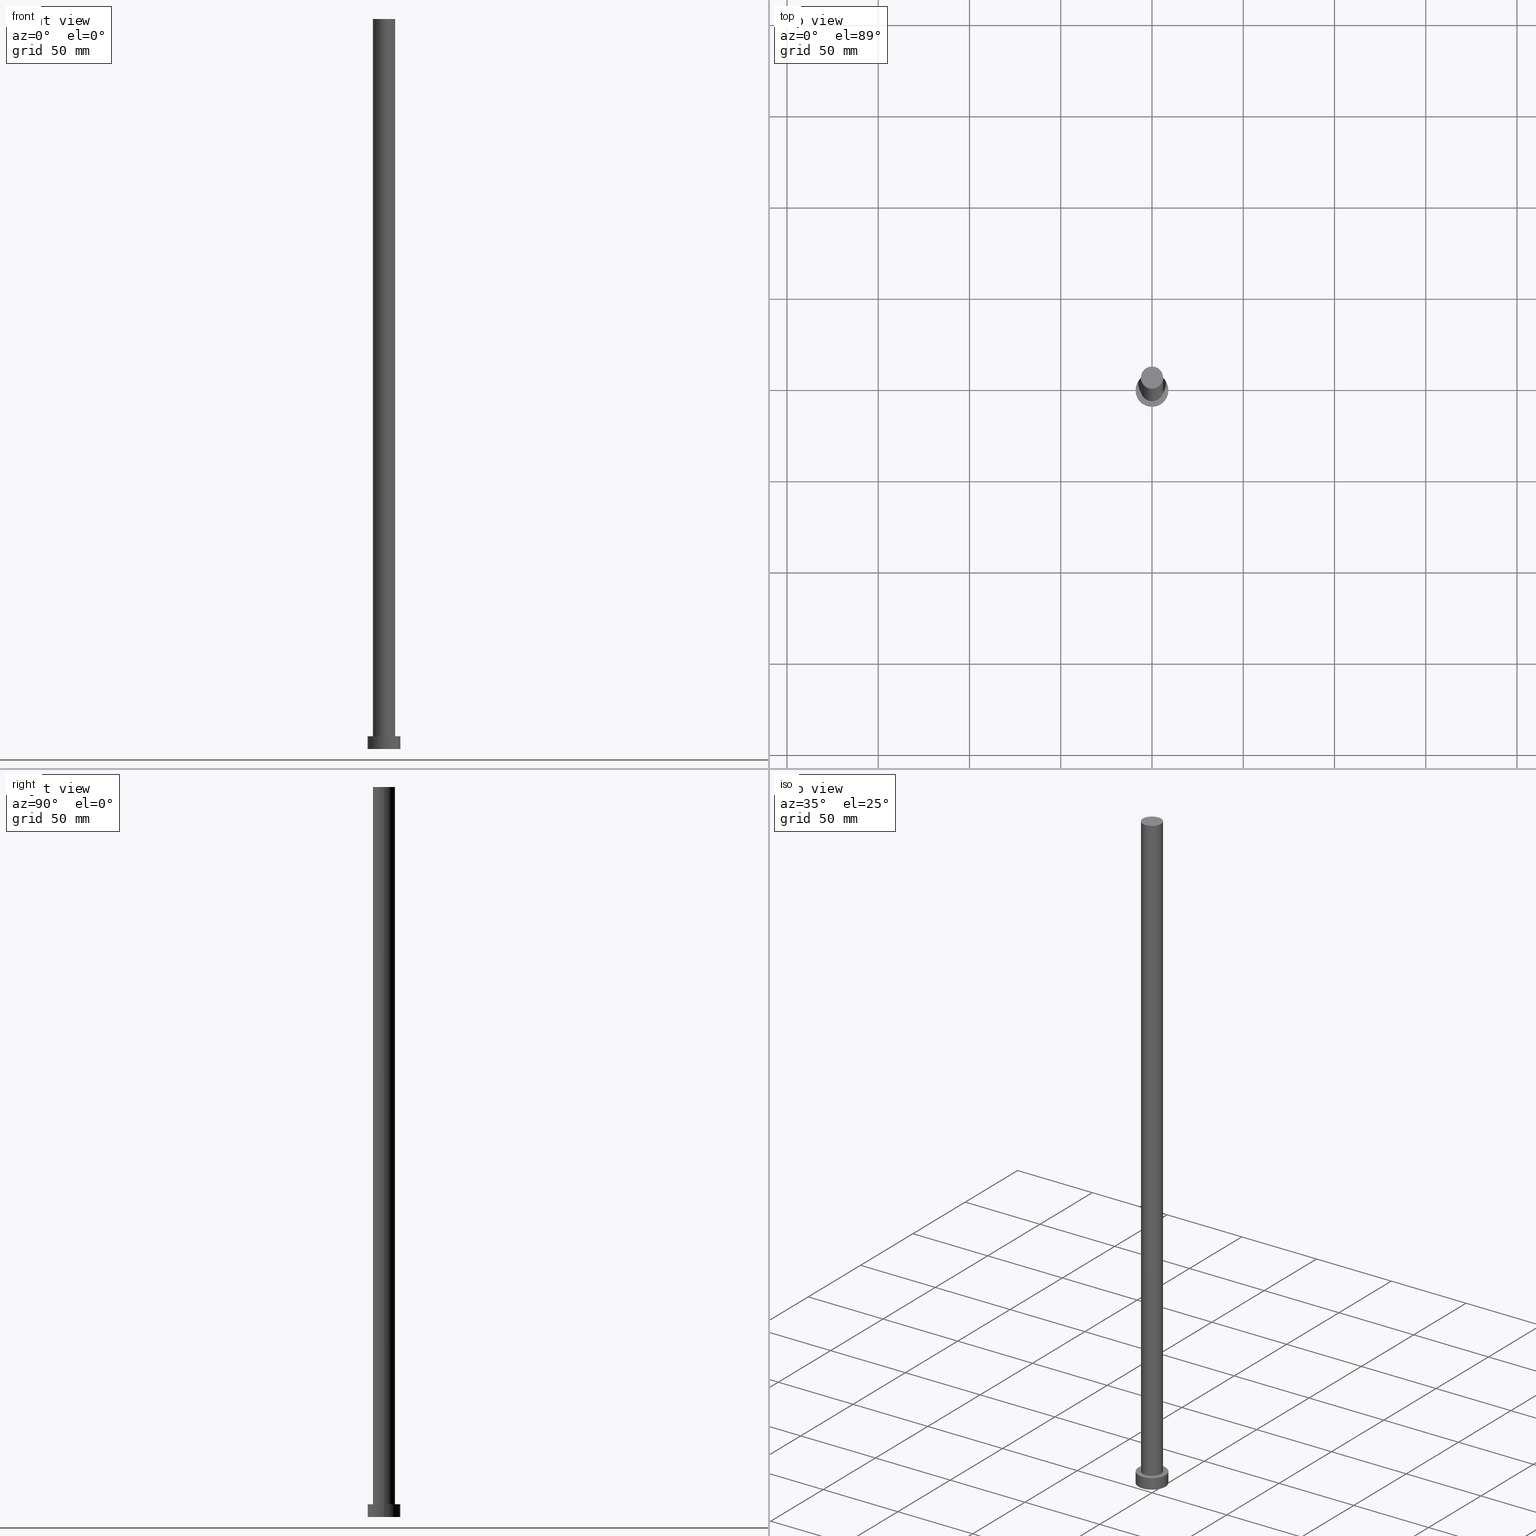
[diagram: canonical four-view strip — front | top / right | iso, engineering-drawing reading convention]
A machine part, canonical four-view strip (front | top / right | iso — engineering-drawing reading convention). The complete STEP part file that produces these views, byte-faithful:
ISO-10303-21;
HEADER;
FILE_DESCRIPTION (( 'STEP AP203' ),
    '1' );
FILE_NAME ('2dad.STEP',
    '2023-02-13T11:28:44',
    ( '' ),
    ( '' ),
    'SwSTEP 2.0',
    'SolidWorks 2019',
    '' );
FILE_SCHEMA (( 'CONFIG_CONTROL_DESIGN' ));
ENDSEC;

DATA;
#1 = EDGE_CURVE ( 'NONE', #119, #86, #211, .T. ) ;
#2 = APPROVAL_DATE_TIME ( #158, #5 ) ;
#3 = AXIS2_PLACEMENT_3D ( 'NONE', #128, #230, #94 ) ;
#4 = ORIENTED_EDGE ( 'NONE', *, *, #54, .T. ) ;
#5 = APPROVAL ( #237, 'NEUR�EN�' ) ;
#6 = LINE ( 'NONE', #187, #92 ) ;
#7 = APPROVAL_PERSON_ORGANIZATION ( #255, #190, #179 ) ;
#8 = ORIENTED_EDGE ( 'NONE', *, *, #181, .T. ) ;
#9 = UNCERTAINTY_MEASURE_WITH_UNIT (LENGTH_MEASURE( 1.000000000000000082E-05 ), #154, 'distance_accuracy_value', 'NONE');
#10 = CARTESIAN_POINT ( 'NONE',  ( 0.000000000000000000, 0.000000000000000000, 0.000000000000000000 ) ) ;
#11 = DIRECTION ( 'NONE',  ( 0.000000000000000000, 0.000000000000000000, 1.000000000000000000 ) ) ;
#12 = CARTESIAN_POINT ( 'NONE',  ( -9.000000000000000000, 0.000000000000000000, 7.000000000000000000 ) ) ;
#13 = DIRECTION ( 'NONE',  ( 0.000000000000000000, 0.000000000000000000, 1.000000000000000000 ) ) ;
#14 = EDGE_CURVE ( 'NONE', #228, #199, #6, .T. ) ;
#15 = DIRECTION ( 'NONE',  ( -1.000000000000000000, 0.000000000000000000, 0.000000000000000000 ) ) ;
#16 = CIRCLE ( 'NONE', #189, 9.000000000000000000 ) ;
#17 = DIRECTION ( 'NONE',  ( 1.000000000000000000, 0.000000000000000000, 0.000000000000000000 ) ) ;
#18 = CYLINDRICAL_SURFACE ( 'NONE', #234, 6.099999999999999645 ) ;
#19 = DATE_AND_TIME ( #138, #207 ) ;
#20 = CC_DESIGN_PERSON_AND_ORGANIZATION_ASSIGNMENT ( #78, #139, ( #202 ) ) ;
#21 = MECHANICAL_CONTEXT ( 'NONE', #224, 'mechanical' ) ;
#22 = AXIS2_PLACEMENT_3D ( 'NONE', #103, #29, #186 ) ;
#23 = ORIENTED_EDGE ( 'NONE', *, *, #14, .T. ) ;
#24 = ORIENTED_EDGE ( 'NONE', *, *, #238, .F. ) ;
#25 = AXIS2_PLACEMENT_3D ( 'NONE', #91, #169, #174 ) ;
#26 = EDGE_LOOP ( 'NONE', ( #125, #84 ) ) ;
#27 = ADVANCED_FACE ( 'NONE', ( #66 ), #45, .T. ) ;
#28 = CARTESIAN_POINT ( 'NONE',  ( 0.000000000000000000, 0.000000000000000000, 7.000000000000000000 ) ) ;
#29 = DIRECTION ( 'NONE',  ( 0.000000000000000000, 0.000000000000000000, 1.000000000000000000 ) ) ;
#30 = CARTESIAN_POINT ( 'NONE',  ( -6.099999999999999645, 0.000000000000000000, 400.0000000000000000 ) ) ;
#31 = DIRECTION ( 'NONE',  ( 0.000000000000000000, 0.000000000000000000, 1.000000000000000000 ) ) ;
#32 = VECTOR ( 'NONE', #111, 1000.000000000000000 ) ;
#33 = EDGE_CURVE ( 'NONE', #199, #205, #76, .T. ) ;
#34 = DIRECTION ( 'NONE',  ( 1.000000000000000000, 0.000000000000000000, 0.000000000000000000 ) ) ;
#35 = DIRECTION ( 'NONE',  ( 0.000000000000000000, 0.000000000000000000, 1.000000000000000000 ) ) ;
#36 = ORIENTED_EDGE ( 'NONE', *, *, #134, .F. ) ;
#37 = PERSON_AND_ORGANIZATION_ROLE ( 'classification_officer' ) ;
#38 = SECURITY_CLASSIFICATION ( '', '', #198 ) ;
#39 = COORDINATED_UNIVERSAL_TIME_OFFSET ( 1, 0, .AHEAD. ) ;
#40 = APPLICATION_CONTEXT ( 'configuration controlled 3d designs of mechanical parts and assemblies' ) ;
#41 = EDGE_LOOP ( 'NONE', ( #57, #8, #67, #164 ) ) ;
#42 = AXIS2_PLACEMENT_3D ( 'NONE', #250, #31, #34 ) ;
#43 = ORIENTED_EDGE ( 'NONE', *, *, #185, .T. ) ;
#44 = EDGE_LOOP ( 'NONE', ( #184, #200 ) ) ;
#45 = CYLINDRICAL_SURFACE ( 'NONE', #87, 6.099999999999999645 ) ;
#46 = CIRCLE ( 'NONE', #42, 6.099999999999999645 ) ;
#47 = CARTESIAN_POINT ( 'NONE',  ( 6.099999999999999645, 7.470345474798854293E-16, 7.000000000000000000 ) ) ;
#48 = PRODUCT_DEFINITION_SHAPE ( 'NONE', 'NONE',  #202 ) ;
#49 = CARTESIAN_POINT ( 'NONE',  ( -9.000000000000000000, 0.000000000000000000, 7.000000000000000000 ) ) ;
#50 = CARTESIAN_POINT ( 'NONE',  ( 9.000000000000000000, 1.102182119232617714E-15, 7.000000000000000000 ) ) ;
#51 = ADVANCED_FACE ( 'NONE', ( #123 ), #203, .T. ) ;
#52 = FACE_OUTER_BOUND ( 'NONE', #41, .T. ) ;
#53 = CARTESIAN_POINT ( 'NONE',  ( 6.099999999999999645, 7.470345474798854293E-16, 400.0000000000000000 ) ) ;
#54 = EDGE_CURVE ( 'NONE', #205, #199, #246, .T. ) ;
#55 =( NAMED_UNIT ( * ) SI_UNIT ( $, .STERADIAN. ) SOLID_ANGLE_UNIT ( ) );
#56 = AXIS2_PLACEMENT_3D ( 'NONE', #10, #85, #127 ) ;
#57 = ORIENTED_EDGE ( 'NONE', *, *, #214, .F. ) ;
#58 = DATE_AND_TIME ( #95, #151 ) ;
#59 = AXIS2_PLACEMENT_3D ( 'NONE', #108, #191, #129 ) ;
#60 = DIRECTION ( 'NONE',  ( 1.000000000000000000, 0.000000000000000000, 0.000000000000000000 ) ) ;
#61 = CC_DESIGN_PERSON_AND_ORGANIZATION_ASSIGNMENT ( #112, #215, ( #254 ) ) ;
#62 = CARTESIAN_POINT ( 'NONE',  ( 0.000000000000000000, 0.000000000000000000, 400.0000000000000000 ) ) ;
#63 = LOCAL_TIME ( 12, 28, 44.00000000000000000, #39 ) ;
#64 = EDGE_LOOP ( 'NONE', ( #121, #24 ) ) ;
#65 = EDGE_LOOP ( 'NONE', ( #201, #122 ) ) ;
#66 = FACE_OUTER_BOUND ( 'NONE', #101, .T. ) ;
#67 = ORIENTED_EDGE ( 'NONE', *, *, #238, .T. ) ;
#68 = DIRECTION ( 'NONE',  ( 0.000000000000000000, 0.000000000000000000, 1.000000000000000000 ) ) ;
#69 = CC_DESIGN_DATE_AND_TIME_ASSIGNMENT ( #196, #161, ( #202 ) ) ;
#70 = LINE ( 'NONE', #30, #32 ) ;
#71 = PRODUCT ( '2dad', '2dad', '', ( #21 ) ) ;
#72 = CARTESIAN_POINT ( 'NONE',  ( 0.000000000000000000, 0.000000000000000000, 400.0000000000000000 ) ) ;
#73 = DIRECTION ( 'NONE',  ( 1.000000000000000000, 0.000000000000000000, 0.000000000000000000 ) ) ;
#74 = DIRECTION ( 'NONE',  ( -1.000000000000000000, 0.000000000000000000, 0.000000000000000000 ) ) ;
#75 = PERSON_AND_ORGANIZATION ( #155, #156 ) ;
#76 = CIRCLE ( 'NONE', #124, 9.000000000000000000 ) ;
#77 = PERSON_AND_ORGANIZATION ( #155, #156 ) ;
#78 = PERSON_AND_ORGANIZATION ( #155, #156 ) ;
#79 = COORDINATED_UNIVERSAL_TIME_OFFSET ( 1, 0, .AHEAD. ) ;
#80 = LOCAL_TIME ( 12, 28, 44.00000000000000000, #239 ) ;
#81 = APPROVAL_ROLE ( '' ) ;
#82 = DIRECTION ( 'NONE',  ( -0.000000000000000000, -0.000000000000000000, -1.000000000000000000 ) ) ;
#83 = CIRCLE ( 'NONE', #120, 6.099999999999999645 ) ;
#84 = ORIENTED_EDGE ( 'NONE', *, *, #162, .T. ) ;
#85 = DIRECTION ( 'NONE',  ( 0.000000000000000000, 0.000000000000000000, 1.000000000000000000 ) ) ;
#86 = VERTEX_POINT ( 'NONE', #47 ) ;
#87 = AXIS2_PLACEMENT_3D ( 'NONE', #62, #82, #243 ) ;
#88 = CC_DESIGN_PERSON_AND_ORGANIZATION_ASSIGNMENT ( #75, #37, ( #38 ) ) ;
#89 = DIRECTION ( 'NONE',  ( -0.000000000000000000, -0.000000000000000000, -1.000000000000000000 ) ) ;
#90 = LINE ( 'NONE', #251, #253 ) ;
#91 = CARTESIAN_POINT ( 'NONE',  ( 0.000000000000000000, 0.000000000000000000, 0.000000000000000000 ) ) ;
#92 = VECTOR ( 'NONE', #145, 1000.000000000000000 ) ;
#93 = FACE_OUTER_BOUND ( 'NONE', #65, .T. ) ;
#94 = DIRECTION ( 'NONE',  ( 1.000000000000000000, 0.000000000000000000, 0.000000000000000000 ) ) ;
#95 = CALENDAR_DATE ( 2023, 13, 2 ) ;
#96 = AXIS2_PLACEMENT_3D ( 'NONE', #192, #35, #60 ) ;
#97 = APPROVAL_STATUS ( 'not_yet_approved' ) ;
#98 = EDGE_LOOP ( 'NONE', ( #204, #247, #226, #4 ) ) ;
#99 = DATE_TIME_ROLE ( 'classification_date' ) ;
#100 = COORDINATED_UNIVERSAL_TIME_OFFSET ( 1, 0, .AHEAD. ) ;
#101 = EDGE_LOOP ( 'NONE', ( #102, #163, #43, #223 ) ) ;
#102 = ORIENTED_EDGE ( 'NONE', *, *, #181, .F. ) ;
#103 = CARTESIAN_POINT ( 'NONE',  ( 0.000000000000000000, 0.000000000000000000, 400.0000000000000000 ) ) ;
#104 = DIRECTION ( 'NONE',  ( 1.000000000000000000, 0.000000000000000000, 0.000000000000000000 ) ) ;
#105 = ADVANCED_FACE ( 'NONE', ( #166, #241 ), #245, .T. ) ;
#106 = CARTESIAN_POINT ( 'NONE',  ( -6.099999999999999645, 0.000000000000000000, 7.000000000000000000 ) ) ;
#107 =( GEOMETRIC_REPRESENTATION_CONTEXT ( 3 ) GLOBAL_UNCERTAINTY_ASSIGNED_CONTEXT ( ( #9 ) ) GLOBAL_UNIT_ASSIGNED_CONTEXT ( ( #154, #206, #55 ) ) REPRESENTATION_CONTEXT ( 'NONE', 'WORKASPACE' ) );
#108 = CARTESIAN_POINT ( 'NONE',  ( 0.000000000000000000, 0.000000000000000000, 7.000000000000000000 ) ) ;
#109 = CYLINDRICAL_SURFACE ( 'NONE', #59, 9.000000000000000000 ) ;
#110 = APPLICATION_PROTOCOL_DEFINITION ( 'international standard', 'config_control_design', 1994, #224 ) ;
#111 = DIRECTION ( 'NONE',  ( -0.000000000000000000, -0.000000000000000000, -1.000000000000000000 ) ) ;
#112 = PERSON_AND_ORGANIZATION ( #155, #156 ) ;
#113 = VERTEX_POINT ( 'NONE', #49 ) ;
#114 = APPROVAL_PERSON_ORGANIZATION ( #160, #5, #197 ) ;
#115 = PERSON_AND_ORGANIZATION ( #155, #156 ) ;
#116 = CALENDAR_DATE ( 2023, 13, 2 ) ;
#117 = CC_DESIGN_DATE_AND_TIME_ASSIGNMENT ( #19, #99, ( #38 ) ) ;
#118 = ADVANCED_BREP_SHAPE_REPRESENTATION ( '2dad', ( #213, #96 ), #107 ) ;
#119 = VERTEX_POINT ( 'NONE', #106 ) ;
#120 = AXIS2_PLACEMENT_3D ( 'NONE', #209, #68, #149 ) ;
#121 = ORIENTED_EDGE ( 'NONE', *, *, #1, .F. ) ;
#122 = ORIENTED_EDGE ( 'NONE', *, *, #33, .F. ) ;
#123 = FACE_OUTER_BOUND ( 'NONE', #44, .T. ) ;
#124 = AXIS2_PLACEMENT_3D ( 'NONE', #142, #148, #146 ) ;
#125 = ORIENTED_EDGE ( 'NONE', *, *, #219, .T. ) ;
#126 = PRODUCT_RELATED_PRODUCT_CATEGORY ( 'detail', '', ( #71 ) ) ;
#127 = DIRECTION ( 'NONE',  ( 1.000000000000000000, 0.000000000000000000, 0.000000000000000000 ) ) ;
#128 = CARTESIAN_POINT ( 'NONE',  ( 0.000000000000000000, 0.000000000000000000, 7.000000000000000000 ) ) ;
#129 = DIRECTION ( 'NONE',  ( -1.000000000000000000, 0.000000000000000000, 0.000000000000000000 ) ) ;
#130 = DIRECTION ( 'NONE',  ( -0.000000000000000000, -0.000000000000000000, -1.000000000000000000 ) ) ;
#131 = PLANE ( 'NONE',  #25 ) ;
#132 = VECTOR ( 'NONE', #89, 1000.000000000000000 ) ;
#133 = DIRECTION ( 'NONE',  ( -0.000000000000000000, -0.000000000000000000, -1.000000000000000000 ) ) ;
#134 = EDGE_CURVE ( 'NONE', #113, #205, #188, .T. ) ;
#135 = SHAPE_DEFINITION_REPRESENTATION ( #48, #118 ) ;
#136 = PERSON_AND_ORGANIZATION_ROLE ( 'creator' ) ;
#137 = CC_DESIGN_PERSON_AND_ORGANIZATION_ASSIGNMENT ( #77, #180, ( #71 ) ) ;
#138 = CALENDAR_DATE ( 2023, 13, 2 ) ;
#139 = PERSON_AND_ORGANIZATION_ROLE ( 'creator' ) ;
#140 = ORIENTED_EDGE ( 'NONE', *, *, #33, .T. ) ;
#141 = CIRCLE ( 'NONE', #3, 9.000000000000000000 ) ;
#142 = CARTESIAN_POINT ( 'NONE',  ( 0.000000000000000000, 0.000000000000000000, 0.000000000000000000 ) ) ;
#143 = CLOSED_SHELL ( 'NONE', ( #229, #153, #171, #105, #165, #27, #51 ) ) ;
#144 = VERTEX_POINT ( 'NONE', #222 ) ;
#145 = DIRECTION ( 'NONE',  ( -0.000000000000000000, -0.000000000000000000, -1.000000000000000000 ) ) ;
#146 = DIRECTION ( 'NONE',  ( 1.000000000000000000, 0.000000000000000000, 0.000000000000000000 ) ) ;
#147 = AXIS2_PLACEMENT_3D ( 'NONE', #28, #11, #167 ) ;
#148 = DIRECTION ( 'NONE',  ( 0.000000000000000000, 0.000000000000000000, 1.000000000000000000 ) ) ;
#149 = DIRECTION ( 'NONE',  ( 1.000000000000000000, 0.000000000000000000, 0.000000000000000000 ) ) ;
#150 = DIRECTION ( 'NONE',  ( 0.000000000000000000, 0.000000000000000000, 1.000000000000000000 ) ) ;
#151 = LOCAL_TIME ( 12, 28, 44.00000000000000000, #79 ) ;
#152 = CC_DESIGN_PERSON_AND_ORGANIZATION_ASSIGNMENT ( #157, #136, ( #254 ) ) ;
#153 = ADVANCED_FACE ( 'NONE', ( #170 ), #109, .T. ) ;
#154 =( LENGTH_UNIT ( ) NAMED_UNIT ( * ) SI_UNIT ( .MILLI., .METRE. ) );
#155 = PERSON ( 'NEUR�EN�', 'NEUR�EN�', 'NEUR�EN�', ('NEUR�EN�'), ('NEUR�EN�'), ('NEUR�EN�') ) ;
#156 = ORGANIZATION ( 'NEUR�EN�', 'NEUR�EN�', '' ) ;
#157 = PERSON_AND_ORGANIZATION ( #155, #156 ) ;
#158 = DATE_AND_TIME ( #176, #195 ) ;
#159 = CC_DESIGN_APPROVAL ( #190, ( #254 ) ) ;
#160 = PERSON_AND_ORGANIZATION ( #155, #156 ) ;
#161 = DATE_TIME_ROLE ( 'creation_date' ) ;
#162 = EDGE_CURVE ( 'NONE', #228, #113, #16, .T. ) ;
#163 = ORIENTED_EDGE ( 'NONE', *, *, #210, .F. ) ;
#164 = ORIENTED_EDGE ( 'NONE', *, *, #185, .F. ) ;
#165 = ADVANCED_FACE ( 'NONE', ( #93 ), #131, .F. ) ;
#166 = FACE_BOUND ( 'NONE', #64, .T. ) ;
#167 = DIRECTION ( 'NONE',  ( 1.000000000000000000, 0.000000000000000000, -0.000000000000000000 ) ) ;
#168 = CIRCLE ( 'NONE', #231, 6.099999999999999645 ) ;
#169 = DIRECTION ( 'NONE',  ( 0.000000000000000000, 0.000000000000000000, 1.000000000000000000 ) ) ;
#170 = FACE_OUTER_BOUND ( 'NONE', #240, .T. ) ;
#171 = ADVANCED_FACE ( 'NONE', ( #248 ), #249, .T. ) ;
#172 = CARTESIAN_POINT ( 'NONE',  ( 9.000000000000000000, 1.102182119232617714E-15, 0.000000000000000000 ) ) ;
#173 = AXIS2_PLACEMENT_3D ( 'NONE', #182, #244, #104 ) ;
#174 = DIRECTION ( 'NONE',  ( 1.000000000000000000, 0.000000000000000000, -0.000000000000000000 ) ) ;
#175 = CARTESIAN_POINT ( 'NONE',  ( 0.000000000000000000, 0.000000000000000000, 7.000000000000000000 ) ) ;
#176 = CALENDAR_DATE ( 2023, 13, 2 ) ;
#177 = CC_DESIGN_APPROVAL ( #5, ( #202 ) ) ;
#178 = APPROVAL_DATE_TIME ( #218, #225 ) ;
#179 = APPROVAL_ROLE ( '' ) ;
#180 = PERSON_AND_ORGANIZATION_ROLE ( 'design_owner' ) ;
#181 = EDGE_CURVE ( 'NONE', #220, #86, #90, .T. ) ;
#182 = CARTESIAN_POINT ( 'NONE',  ( 0.000000000000000000, 0.000000000000000000, 7.000000000000000000 ) ) ;
#183 = APPROVAL_PERSON_ORGANIZATION ( #115, #225, #81 ) ;
#184 = ORIENTED_EDGE ( 'NONE', *, *, #210, .T. ) ;
#185 = EDGE_CURVE ( 'NONE', #144, #119, #70, .T. ) ;
#186 = DIRECTION ( 'NONE',  ( 1.000000000000000000, 0.000000000000000000, -0.000000000000000000 ) ) ;
#187 = CARTESIAN_POINT ( 'NONE',  ( 9.000000000000000000, 1.102182119232617714E-15, 7.000000000000000000 ) ) ;
#188 = LINE ( 'NONE', #12, #132 ) ;
#189 = AXIS2_PLACEMENT_3D ( 'NONE', #175, #13, #17 ) ;
#190 = APPROVAL ( #252, 'NEUR�EN�' ) ;
#191 = DIRECTION ( 'NONE',  ( -0.000000000000000000, -0.000000000000000000, -1.000000000000000000 ) ) ;
#192 = CARTESIAN_POINT ( 'NONE',  ( 0.000000000000000000, 0.000000000000000000, 0.000000000000000000 ) ) ;
#193 = CARTESIAN_POINT ( 'NONE',  ( 0.000000000000000000, 0.000000000000000000, 400.0000000000000000 ) ) ;
#194 = COORDINATED_UNIVERSAL_TIME_OFFSET ( 1, 0, .AHEAD. ) ;
#195 = LOCAL_TIME ( 12, 28, 44.00000000000000000, #100 ) ;
#196 = DATE_AND_TIME ( #116, #63 ) ;
#197 = APPROVAL_ROLE ( '' ) ;
#198 = SECURITY_CLASSIFICATION_LEVEL ( 'unclassified' ) ;
#199 = VERTEX_POINT ( 'NONE', #172 ) ;
#200 = ORIENTED_EDGE ( 'NONE', *, *, #214, .T. ) ;
#201 = ORIENTED_EDGE ( 'NONE', *, *, #54, .F. ) ;
#202 = PRODUCT_DEFINITION ( 'NEZN�M�', '', #254, #208 ) ;
#203 = PLANE ( 'NONE',  #22 ) ;
#204 = ORIENTED_EDGE ( 'NONE', *, *, #14, .F. ) ;
#205 = VERTEX_POINT ( 'NONE', #212 ) ;
#206 =( NAMED_UNIT ( * ) PLANE_ANGLE_UNIT ( ) SI_UNIT ( $, .RADIAN. ) );
#207 = LOCAL_TIME ( 12, 28, 44.00000000000000000, #194 ) ;
#208 = DESIGN_CONTEXT ( 'detailed design', #40, 'design' ) ;
#209 = CARTESIAN_POINT ( 'NONE',  ( 0.000000000000000000, 0.000000000000000000, 7.000000000000000000 ) ) ;
#210 = EDGE_CURVE ( 'NONE', #144, #220, #46, .T. ) ;
#211 = CIRCLE ( 'NONE', #173, 6.099999999999999645 ) ;
#212 = CARTESIAN_POINT ( 'NONE',  ( -9.000000000000000000, 0.000000000000000000, 0.000000000000000000 ) ) ;
#213 = MANIFOLD_SOLID_BREP ( 'P�idat vysunut�m3', #143 ) ;
#214 = EDGE_CURVE ( 'NONE', #220, #144, #168, .T. ) ;
#215 = PERSON_AND_ORGANIZATION_ROLE ( 'design_supplier' ) ;
#216 = CC_DESIGN_SECURITY_CLASSIFICATION ( #38, ( #254 ) ) ;
#217 = APPLICATION_PROTOCOL_DEFINITION ( 'international standard', 'config_control_design', 1994, #40 ) ;
#218 = DATE_AND_TIME ( #235, #80 ) ;
#219 = EDGE_CURVE ( 'NONE', #113, #228, #141, .T. ) ;
#220 = VERTEX_POINT ( 'NONE', #53 ) ;
#221 = AXIS2_PLACEMENT_3D ( 'NONE', #233, #133, #74 ) ;
#222 = CARTESIAN_POINT ( 'NONE',  ( -6.099999999999999645, 0.000000000000000000, 400.0000000000000000 ) ) ;
#223 = ORIENTED_EDGE ( 'NONE', *, *, #1, .T. ) ;
#224 = APPLICATION_CONTEXT ( 'configuration controlled 3d designs of mechanical parts and assemblies' ) ;
#225 = APPROVAL ( #97, 'NEUR�EN�' ) ;
#226 = ORIENTED_EDGE ( 'NONE', *, *, #134, .T. ) ;
#227 = ORIENTED_EDGE ( 'NONE', *, *, #162, .F. ) ;
#228 = VERTEX_POINT ( 'NONE', #50 ) ;
#229 = ADVANCED_FACE ( 'NONE', ( #52 ), #18, .T. ) ;
#230 = DIRECTION ( 'NONE',  ( 0.000000000000000000, 0.000000000000000000, 1.000000000000000000 ) ) ;
#231 = AXIS2_PLACEMENT_3D ( 'NONE', #72, #150, #73 ) ;
#232 = DIRECTION ( 'NONE',  ( -0.000000000000000000, -0.000000000000000000, -1.000000000000000000 ) ) ;
#233 = CARTESIAN_POINT ( 'NONE',  ( 0.000000000000000000, 0.000000000000000000, 7.000000000000000000 ) ) ;
#234 = AXIS2_PLACEMENT_3D ( 'NONE', #193, #130, #15 ) ;
#235 = CALENDAR_DATE ( 2023, 13, 2 ) ;
#236 = APPROVAL_DATE_TIME ( #58, #190 ) ;
#237 = APPROVAL_STATUS ( 'not_yet_approved' ) ;
#238 = EDGE_CURVE ( 'NONE', #86, #119, #83, .T. ) ;
#239 = COORDINATED_UNIVERSAL_TIME_OFFSET ( 1, 0, .AHEAD. ) ;
#240 = EDGE_LOOP ( 'NONE', ( #227, #23, #140, #36 ) ) ;
#241 = FACE_OUTER_BOUND ( 'NONE', #26, .T. ) ;
#242 = CC_DESIGN_APPROVAL ( #225, ( #38 ) ) ;
#243 = DIRECTION ( 'NONE',  ( -1.000000000000000000, 0.000000000000000000, 0.000000000000000000 ) ) ;
#244 = DIRECTION ( 'NONE',  ( 0.000000000000000000, 0.000000000000000000, 1.000000000000000000 ) ) ;
#245 = PLANE ( 'NONE',  #147 ) ;
#246 = CIRCLE ( 'NONE', #56, 9.000000000000000000 ) ;
#247 = ORIENTED_EDGE ( 'NONE', *, *, #219, .F. ) ;
#248 = FACE_OUTER_BOUND ( 'NONE', #98, .T. ) ;
#249 = CYLINDRICAL_SURFACE ( 'NONE', #221, 9.000000000000000000 ) ;
#250 = CARTESIAN_POINT ( 'NONE',  ( 0.000000000000000000, 0.000000000000000000, 400.0000000000000000 ) ) ;
#251 = CARTESIAN_POINT ( 'NONE',  ( 6.099999999999999645, 7.470345474798854293E-16, 400.0000000000000000 ) ) ;
#252 = APPROVAL_STATUS ( 'not_yet_approved' ) ;
#253 = VECTOR ( 'NONE', #232, 1000.000000000000000 ) ;
#254 = PRODUCT_DEFINITION_FORMATION_WITH_SPECIFIED_SOURCE ( 'LIBOVOLN�', '', #71, .NOT_KNOWN. ) ;
#255 = PERSON_AND_ORGANIZATION ( #155, #156 ) ;
ENDSEC;
END-ISO-10303-21;
